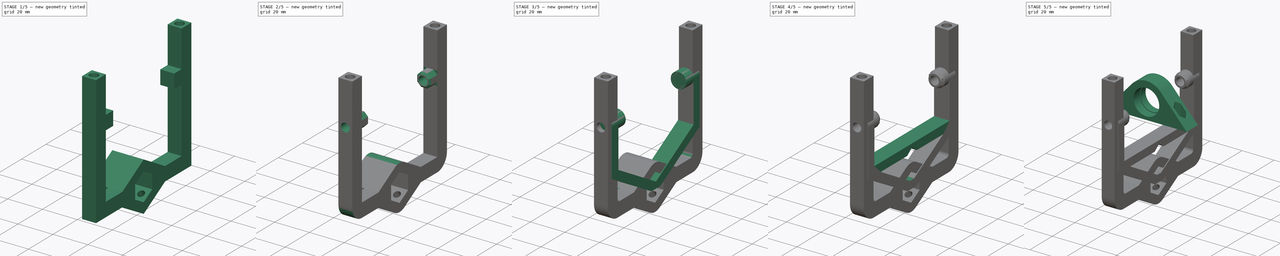
[diagram: build sequence overview — one tinted view per stage of 5, left to right]
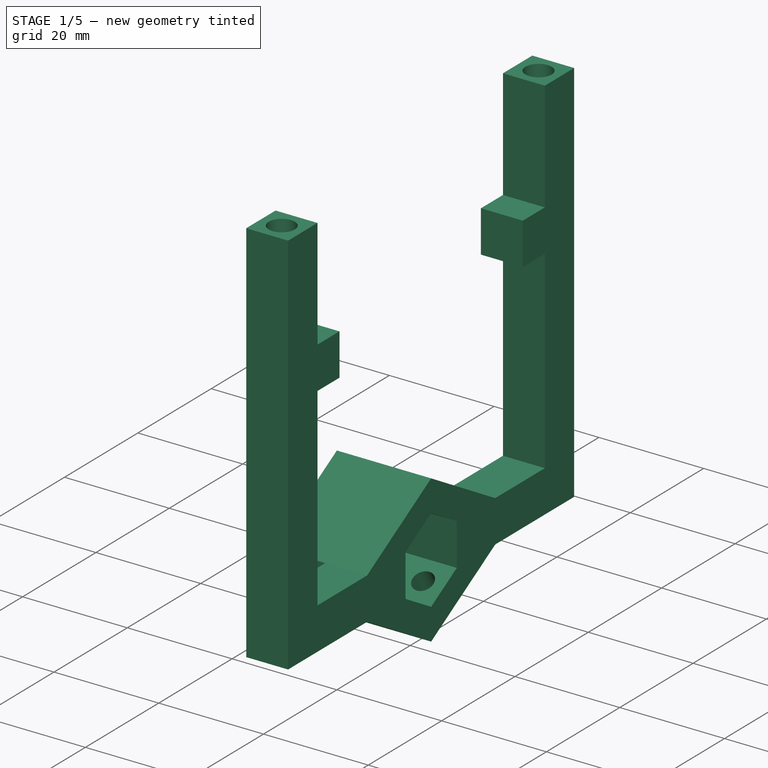
[diagram: stage 1 of 5 — iso view after this stage's code; geometry added in this stage tinted green]
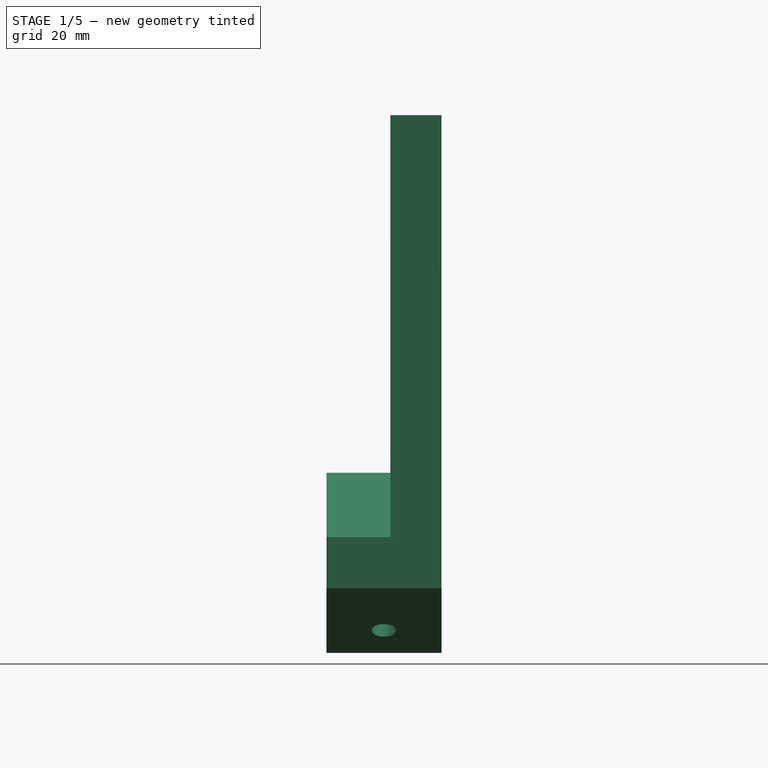
[diagram: stage 1 of 5 — front view after this stage's code; geometry added in this stage tinted green]
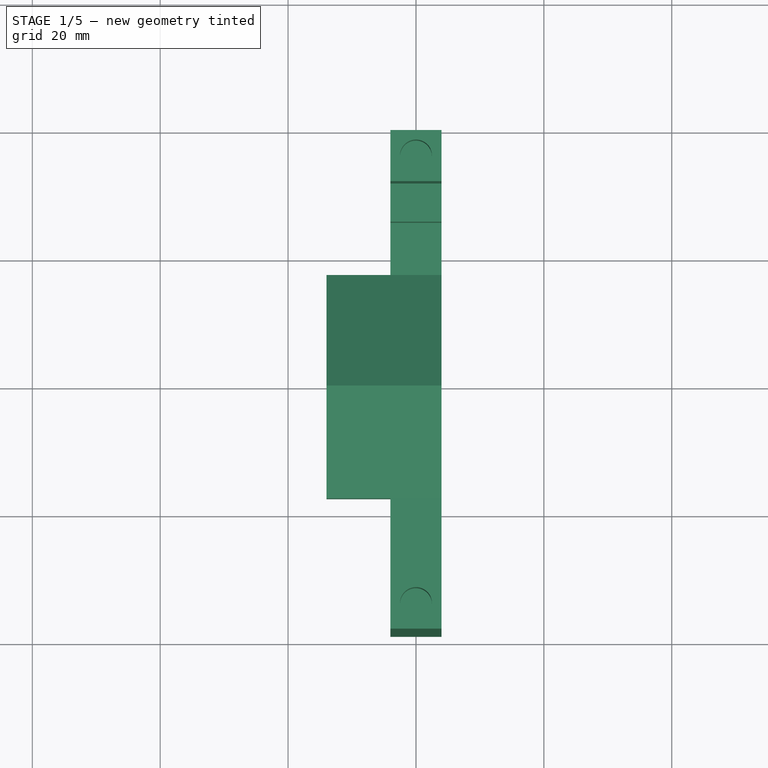
[diagram: stage 1 of 5 — top view after this stage's code; geometry added in this stage tinted green]
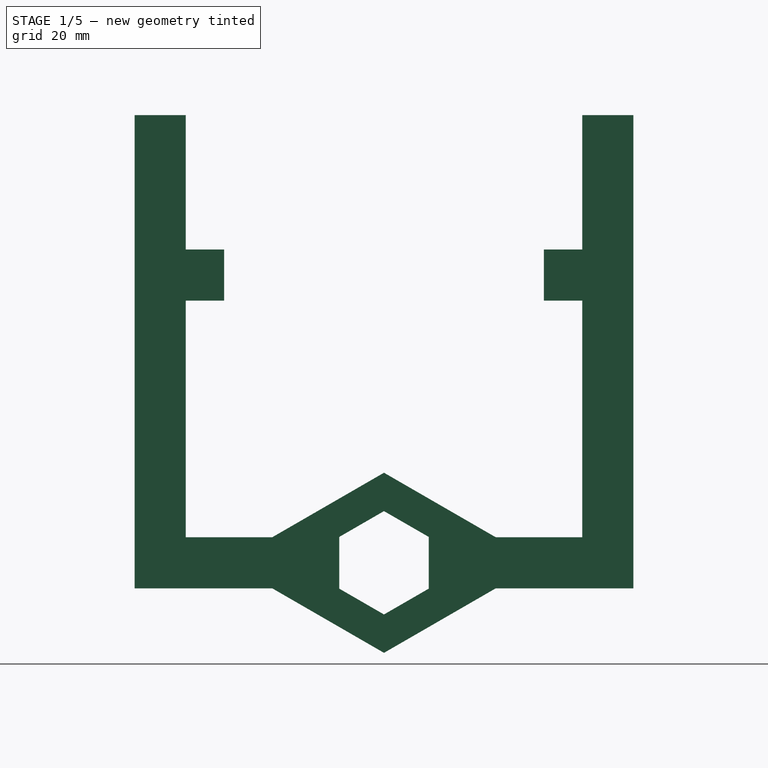
[diagram: stage 1 of 5 — right view after this stage's code; geometry added in this stage tinted green]
FCSTD DOCUMENT  (FreeCAD 0.19R23141 (Git))
Label: plotter_pen_holder_2
License: All rights reserved
LicenseURL: http://en.wikipedia.org/wiki/All_rights_reserved
objects: Sketcher::SketchObject×13, PartDesign::Pocket×6, PartDesign::Pad×5, PartDesign::Body×4, PartDesign::Fillet×4, PartDesign::Chamfer×4, PartDesign::Hole×2, PartDesign::FeatureBase×1, PartDesign::Mirrored×1
note: 61 computed .brp shape members not serialized (recipe doc carries the construction recipe); baked Part::Feature solids carry a one-line shape summary decoded from their .brp

FEATURE [PartDesign::Body] Body002
  Group = -> [Sketch004,Pad001,Mirrored,Fillet,Chamfer,Chamfer001,Sketch005,Pad002,Sketch006,Pocket001]
  Origin = -> Origin002
  Tip = -> Pocket001
FEATURE [Sketcher::SketchObject] Sketch007
  MapMode = 5
  Placement = pos=(0,0,0) rot=(0.57735,0.57735,0.57735;2.0944rad)
  Support = -> [YZ_Plane003]
  sketch-geometry (35):
    g0: LineSegment StartX=31 StartY=35 StartZ=0 EndX=39 EndY=35 EndZ=0
    g1: LineSegment StartX=39 StartY=35 StartZ=0 EndX=39 EndY=-39 EndZ=0
    g2: LineSegment StartX=39 StartY=-39 StartZ=0 EndX=17.4641 EndY=-39 EndZ=0
    g3: LineSegment StartX=17.4641 StartY=-39 StartZ=0 EndX=0 EndY=-49.0829 EndZ=0
    g4: LineSegment StartX=0 StartY=-49.0829 StartZ=0 EndX=-17.4641 EndY=-39 EndZ=0
    g5: LineSegment StartX=-17.4641 StartY=-39 StartZ=0 EndX=-39 EndY=-39 EndZ=0
    g6: LineSegment StartX=-39 StartY=-39 StartZ=0 EndX=-39 EndY=35 EndZ=0
    g7: LineSegment StartX=-39 StartY=35 StartZ=0 EndX=-31 EndY=35 EndZ=0
    g8: LineSegment [constr] StartX=-31 StartY=35 StartZ=0 EndX=-31 EndY=-31 EndZ=0
    g9: LineSegment StartX=-31 StartY=-31 StartZ=0 EndX=-17.4641 EndY=-31 EndZ=0
    g10: LineSegment StartX=-17.4641 StartY=-31 StartZ=0 EndX=0 EndY=-20.9171 EndZ=0
    g11: LineSegment StartX=0 StartY=-20.9171 StartZ=0 EndX=17.4641 EndY=-31 EndZ=0
    g12: LineSegment StartX=17.4641 StartY=-31 StartZ=0 EndX=31 EndY=-31 EndZ=0
    g13: LineSegment [constr] StartX=31 StartY=-31 StartZ=0 EndX=31 EndY=35 EndZ=0
    g14: LineSegment StartX=7 StartY=-39.0415 StartZ=0 EndX=7 EndY=-30.9585 EndZ=0
    g15: LineSegment StartX=7 StartY=-30.9585 StartZ=0 EndX=0 EndY=-26.9171 EndZ=0
    g16: LineSegment StartX=0 StartY=-26.9171 StartZ=0 EndX=-7 EndY=-30.9585 EndZ=0
    g17: LineSegment StartX=-7 StartY=-30.9585 StartZ=0 EndX=-7 EndY=-39.0415 EndZ=0
    g18: LineSegment StartX=-7 StartY=-39.0415 StartZ=0 EndX=0 EndY=-43.0829 EndZ=0
    g19: LineSegment StartX=-1e-16 StartY=-43.0829 StartZ=0 EndX=7 EndY=-39.0415 EndZ=0
    g20: Circle [constr] CenterX=0 CenterY=-35 CenterZ=0 NormalX=0 NormalY=0 NormalZ=1 AngleXU=0 Radius=8.0829
    g21: LineSegment [constr] StartX=-17.4641 StartY=-31 StartZ=0 EndX=-17.4641 EndY=-39 EndZ=0
    g22: LineSegment [constr] StartX=17.4641 StartY=-31 StartZ=0 EndX=17.4641 EndY=-39 EndZ=0
    g23: LineSegment StartX=-31 StartY=35 StartZ=0 EndX=-31 EndY=14 EndZ=0
    g24: LineSegment StartX=-31 StartY=14 StartZ=0 EndX=-25 EndY=14 EndZ=0
    g25: LineSegment StartX=-25 StartY=14 StartZ=0 EndX=-25 EndY=6 EndZ=0
    g26: LineSegment StartX=-25 StartY=6 StartZ=0 EndX=-31 EndY=6 EndZ=0
    g27: LineSegment StartX=-31 StartY=6 StartZ=0 EndX=-31 EndY=-31 EndZ=0
    g28: LineSegment StartX=31 StartY=35 StartZ=0 EndX=31 EndY=14 EndZ=0
    g29: LineSegment StartX=31 StartY=14 StartZ=0 EndX=25 EndY=14 EndZ=0
    g30: LineSegment StartX=25 StartY=14 StartZ=0 EndX=25 EndY=6 EndZ=0
    g31: LineSegment StartX=25 StartY=6 StartZ=0 EndX=31 EndY=6 EndZ=0
    g32: LineSegment StartX=31 StartY=6 StartZ=0 EndX=31 EndY=-31 EndZ=0
    g33: LineSegment [constr] StartX=-25 StartY=14 StartZ=0 EndX=0 EndY=10 EndZ=0
    g34: LineSegment [constr] StartX=0 StartY=10 StartZ=0 EndX=-25 EndY=6 EndZ=0
  constraints (96):
    c: Horizontal(g0)
    c: Coincident(g0,g1)
    c: Vertical(g1)
    c: Coincident(g1,g2)
    c: Horizontal(g2)
    c: Coincident(g2,g3)
    c: Coincident(g4,g5)
    c: Horizontal(g5)
    c: Coincident(g5,g6)
    c: Vertical(g6)
    c: Coincident(g6,g7)
    c: Horizontal(g7)
    c: Coincident(g7,g8)
    c: Vertical(g8)
    c: Coincident(g8,g9)
    c: Horizontal(g9)
    c: Coincident(g9,g10)
    c: Coincident(g11,g12)
    c: Horizontal(g12)
    c: Coincident(g12,g13)
    c: Coincident(g13,g0)
    c: Vertical(g13)
    c: Coincident(g14,g15)
    c: Coincident(g15,g16)
    c: Coincident(g16,g17)
    c: Coincident(g17,g18)
    c: Coincident(g18,g19)
    c: Coincident(g19,g14)
    c: Equal(g14, g15-g19) x5
    c: PointOnObject(g14,g20)
    c: PointOnObject(g15,g20)
    c: PointOnObject(g16,g20)
    c: PointOnObject(g17,g20)
    c: PointOnObject(g18,g20)
    c: PointOnObject(g19,g20)
    c: PointOnObject(g20,g-2)
    c: PointOnObject(g15,g-2)
    c: DistanceY(g20,g-1) = 35
    c: DistanceX(g16,g14) = 14
    c: PointOnObject(g3,g-2)
    c: Coincident(g4,g3)
    c: Coincident(g10,g11)
    c: PointOnObject(g10,g-2)
    c: Parallel(g18,g4)
    c: Parallel(g19,g3)
    c: Parallel(g16,g10)
    c: Parallel(g15,g11)
    c: DistanceY(g15,g10) = 6
    c: DistanceY(g3,g18) = 6
    c: Coincident(g9,g21)
    c: Coincident(g21,g4)
    c: Coincident(g11,g22)
    c: Coincident(g22,g2)
    c: Vertical(g21)
    c: Vertical(g22)
    c: Equal(g22,g21)
    c: DistanceY(g22,g22) = 8
    c: Equal(g0,g7)
    c: Equal(g13,g8)
    c: Equal(g9,g12)
    c: DistanceX(g7,g0) = 62
    c: Equal(g0,g22)
    c: DistanceY(g-1,g0) = 35
    c: Coincident(g7,g23)
    c: PointOnObject(g23,g8)
    c: Coincident(g23,g24)
    c: Horizontal(g24)
    c: Coincident(g24,g25)
    c: Vertical(g25)
    c: Coincident(g25,g26)
    c: PointOnObject(g26,g8)
    c: Horizontal(g26)
    c: Coincident(g26,g27)
    c: Coincident(g27,g8)
    c: Coincident(g28,g0)
    c: PointOnObject(g28,g13)
    c: Coincident(g28,g29)
    c: Coincident(g29,g30)
    c: Coincident(g30,g31)
    c: PointOnObject(g31,g13)
    c: Horizontal(g31)
    c: Coincident(g31,g32)
    c: Coincident(g32,g12)
    c: Vertical(g30)
    c: Horizontal(g29)
    c: Equal(g28,g23)
    c: Equal(g25,g30)
    c: Equal(g31,g26)
    c: Coincident(g24,g33)
    c: PointOnObject(g33,g-2)
    c: Coincident(g33,g34)
    c: Coincident(g34,g25)
    c: DistanceY(g25,g25) = 8
    c: Equal(g34,g33)
    c: DistanceY(g-1,g33) = 10
    c: DistanceX(g24,g24) = 6
FEATURE [PartDesign::Pad] Pad003
  Direction = (1,1,1)
  Length = 8
  Length2 = 100
  Midplane = true
  Placement = pos=(0,0,0) rot=(0.57735,0.57735,0.57735;2.0944rad)
  Profile = -> Sketch007
  Type = 0
FEATURE [Sketcher::SketchObject] Sketch008
  ExternalGeometry = -> [Pad003]
  MapMode = 5
  Placement = pos=(-4,1.8e-15,-1.3e-15) rot=(0.57735,0.57735,-0.57735;4.18879rad)
  Support = -> [Pad003]
  sketch-geometry (12):
    g0: LineSegment StartX=-17.4641 StartY=31 StartZ=0 EndX=-17.4641 EndY=39 EndZ=0
    g1: LineSegment StartX=-17.4641 StartY=39 StartZ=0 EndX=-1.78e-14 EndY=49.0829 EndZ=0
    g2: LineSegment StartX=-1.78e-14 StartY=49.0829 StartZ=0 EndX=17.4641 EndY=39 EndZ=0
    g3: LineSegment StartX=17.4641 StartY=39 StartZ=0 EndX=17.4641 EndY=31 EndZ=0
    g4: LineSegment StartX=17.4641 StartY=31 StartZ=0 EndX=-7.1e-15 EndY=20.9171 EndZ=0
    g5: LineSegment StartX=-7.1e-15 StartY=20.9171 StartZ=0 EndX=-17.4641 EndY=31 EndZ=0
    g6: LineSegment StartX=-7 StartY=30.9585 StartZ=0 EndX=-9.8e-15 EndY=26.9171 EndZ=0
    g7: LineSegment StartX=-9.8e-15 StartY=26.9171 StartZ=0 EndX=7 EndY=30.9585 EndZ=0
    g8: LineSegment StartX=7 StartY=30.9585 StartZ=0 EndX=7 EndY=39.0415 EndZ=0
    g9: LineSegment StartX=7 StartY=39.0415 StartZ=0 EndX=-1.42e-14 EndY=43.0829 EndZ=0
    g10: LineSegment StartX=-1.42e-14 StartY=43.0829 StartZ=0 EndX=-7 EndY=39.0415 EndZ=0
    g11: LineSegment StartX=-7 StartY=39.0415 StartZ=0 EndX=-7 EndY=30.9585 EndZ=0
  constraints (24):
    c: Coincident(g-4,g0)
    c: Coincident(g0,g-3)
    c: Coincident(g0,g1)
    c: Coincident(g1,g-6)
    c: Coincident(g1,g2)
    c: Coincident(g2,g-6)
    c: Coincident(g2,g3)
    c: Coincident(g3,g-5)
    c: Coincident(g3,g4)
    c: Coincident(g4,g-5)
    c: Coincident(g4,g5)
    c: Coincident(g5,g0)
    c: Coincident(g-10,g6)
    c: Coincident(g6,g-11)
    c: Coincident(g6,g7)
    c: Coincident(g7,g-12)
    c: Coincident(g7,g8)
    c: Coincident(g8,g-12)
    c: Coincident(g8,g9)
    c: Coincident(g9,g-8)
    c: Coincident(g9,g10)
    c: Coincident(g10,g-9)
    c: Coincident(g10,g11)
    c: Coincident(g11,g6)
FEATURE [PartDesign::Pad] Pad004
  BaseFeature = -> Pad003
  Direction = (1,1,1)
  Length = 10
  Length2 = 100
  Placement = pos=(0,0,0) rot=(0.57735,0.57735,0.57735;2.0944rad)
  Profile = -> Sketch008
  Refine = true
  Type = 0
FEATURE [Sketcher::SketchObject] Sketch009
  ExternalGeometry = -> [Pad004]
  MapMode = 5
  Placement = pos=(3.07e-14,18.6554,-32.3122) rot=(0.250563,0.250563,-0.935113;1.63783rad)
  Support = -> [Pad004]
  sketch-geometry (6):
    g0: Circle CenterX=17.5 CenterY=-3.6e-15 CenterZ=0 NormalX=0 NormalY=0 NormalZ=1 AngleXU=0 Radius=1.95
    g1: Circle CenterX=17.5 CenterY=-10 CenterZ=0 NormalX=0 NormalY=0 NormalZ=1 AngleXU=0 Radius=1.95
    g2: LineSegment [constr] StartX=13.4585 StartY=4 StartZ=0 EndX=17.5 EndY=-3.6e-15 EndZ=0
    g3: LineSegment [constr] StartX=17.5 StartY=-3.6e-15 StartZ=0 EndX=21.5415 EndY=4 EndZ=0
    g4: LineSegment [constr] StartX=13.4585 StartY=-14 StartZ=0 EndX=17.5 EndY=-10 EndZ=0
    g5: LineSegment [constr] StartX=17.5 StartY=-10 StartZ=0 EndX=17.5 EndY=-3.6e-15 EndZ=0
  constraints (14):
    c: Coincident(g-3,g2)
    c: Coincident(g2,g0)
    c: Coincident(g2,g3)
    c: Coincident(g3,g-3)
    c: Coincident(g-4,g4)
    c: Coincident(g4,g1)
    c: Coincident(g4,g5)
    c: Coincident(g5,g0)
    c: Vertical(g5)
    c: Equal(g2,g3)
    c: Equal(g3,g4)
    c: DistanceY(g5,g5) = 10
    c: Diameter(g0) = 3.9
    c: Equal(g0,g1)
FEATURE [PartDesign::Pocket] Pocket002
  BaseFeature = -> Pad004
  Length = 10
  Length2 = 100
  Placement = pos=(0,0,0) rot=(0.57735,0.57735,0.57735;2.0944rad)
  Profile = -> Sketch009
  Type = 0
FEATURE [Sketcher::SketchObject] Sketch010
  ExternalGeometry = -> [Pocket002]
  MapMode = 5
  Placement = pos=(9.7e-15,-18.6554,-32.3122) rot=(-0.250563,-0.250563,-0.935113;1.63783rad)
  Support = -> [Pocket002]
  sketch-geometry (4):
    g0: LineSegment [constr] StartX=-21.5415 StartY=4 StartZ=0 EndX=-17.5 EndY=-5 EndZ=0
    g1: LineSegment [constr] StartX=-17.5 StartY=-5 StartZ=0 EndX=-13.4585 EndY=4 EndZ=0
    g2: LineSegment [constr] StartX=-17.5 StartY=-5 StartZ=0 EndX=-13.4585 EndY=-14 EndZ=0
    g3: Circle CenterX=-17.5 CenterY=-5 CenterZ=0 NormalX=0 NormalY=0 NormalZ=1 AngleXU=0 Radius=1.95
  constraints (9):
    c: Coincident(g-4,g0)
    c: Coincident(g0,g1)
    c: Coincident(g1,g-4)
    c: Coincident(g0,g2)
    c: Coincident(g2,g-3)
    c: Equal(g2,g1)
    c: Equal(g1,g0)
    c: Coincident(g3,g0)
    c: Diameter(g3) = 3.9
FEATURE [PartDesign::Pocket] Pocket003
  BaseFeature = -> Pocket002
  Length = 10
  Length2 = 100
  Placement = pos=(0,0,0) rot=(0.57735,0.57735,0.57735;2.0944rad)
  Profile = -> Sketch010
  Type = 0
FEATURE [Sketcher::SketchObject] Sketch011
  ExternalGeometry = -> [Pocket003]
  MapMode = 5
  Placement = pos=(-4.86e-14,3.11e-14,35) rot=(0,0,-1;1.5708rad)
  Support = -> [Pocket003]
  sketch-geometry (8):
    g0: Circle CenterX=-35 CenterY=-1.24e-14 CenterZ=0 NormalX=0 NormalY=0 NormalZ=1 AngleXU=0 Radius=2.5
    g1: Circle CenterX=35 CenterY=2.416e-13 CenterZ=0 NormalX=0 NormalY=0 NormalZ=1 AngleXU=0 Radius=2.5
    g2: LineSegment [constr] StartX=39 StartY=4 StartZ=0 EndX=35 EndY=2.416e-13 EndZ=0
    g3: LineSegment [constr] StartX=35 StartY=2.416e-13 StartZ=0 EndX=31 EndY=4 EndZ=0
    g4: LineSegment [constr] StartX=31 StartY=-4 StartZ=0 EndX=35 EndY=2.416e-13 EndZ=0
    g5: LineSegment [constr] StartX=-35 StartY=-1.24e-14 StartZ=0 EndX=-39 EndY=-4 EndZ=0
    g6: LineSegment [constr] StartX=-39 StartY=4 StartZ=0 EndX=-35 EndY=-1.24e-14 EndZ=0
    g7: LineSegment [constr] StartX=-35 StartY=-1.24e-14 StartZ=0 EndX=-31 EndY=4 EndZ=0
  constraints (18):
    c: Diameter(g1) = 5
    c: Equal(g1,g0)
    c: Coincident(g2,g1)
    c: Coincident(g2,g3)
    c: Coincident(g4,g1)
    c: Coincident(g5,g0)
    c: Coincident(g5,g-4)
    c: Coincident(g-3,g6)
    c: Coincident(g6,g0)
    c: Coincident(g6,g7)
    c: Coincident(g7,g-3)
    c: Equal(g7,g6)
    c: Equal(g6,g5)
    c: Equal(g2,g3)
    c: Equal(g3,g4)
    c: Coincident(g2,g-5)
    c: Coincident(g4,g-6)
    c: Coincident(g-5,g3)
FEATURE [PartDesign::Pocket] Pocket004
  BaseFeature = -> Pocket003
  Length = 10
  Length2 = 100
  Placement = pos=(0,0,0) rot=(0.57735,0.57735,0.57735;2.0944rad)
  Profile = -> Sketch011
  Type = 0
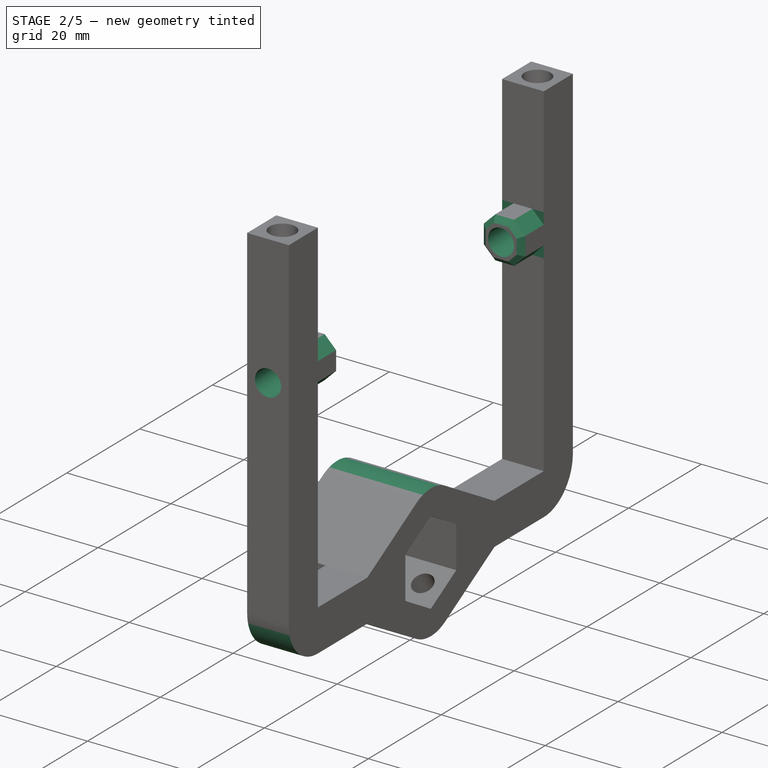
[diagram: stage 2 of 5 — iso view after this stage's code; geometry added in this stage tinted green]
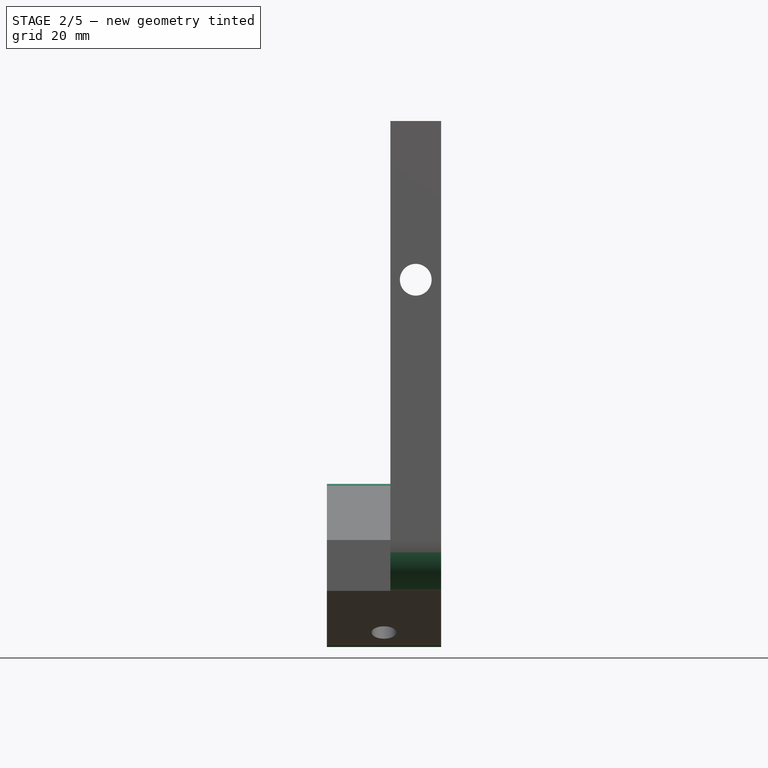
[diagram: stage 2 of 5 — front view after this stage's code; geometry added in this stage tinted green]
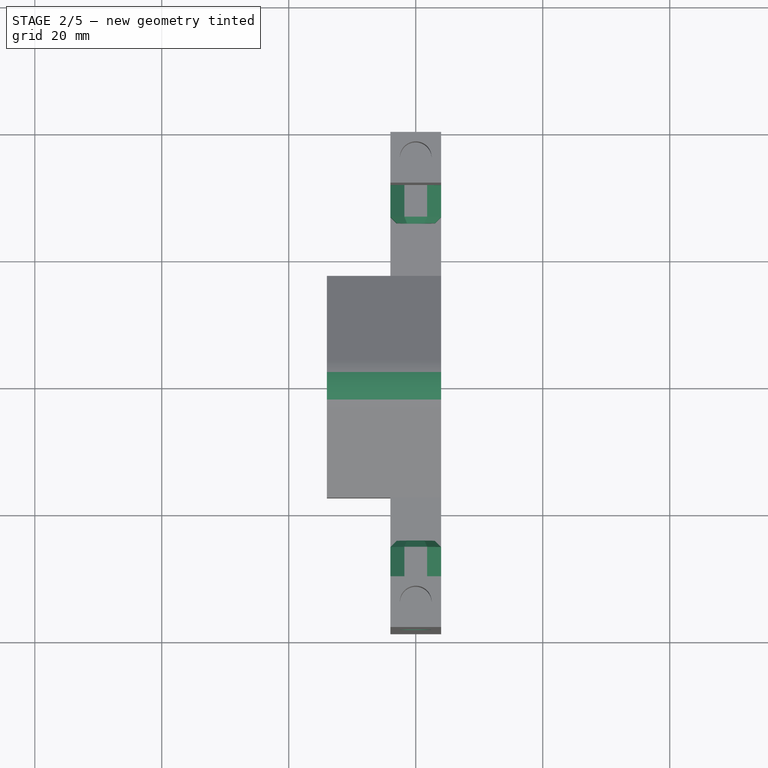
[diagram: stage 2 of 5 — top view after this stage's code; geometry added in this stage tinted green]
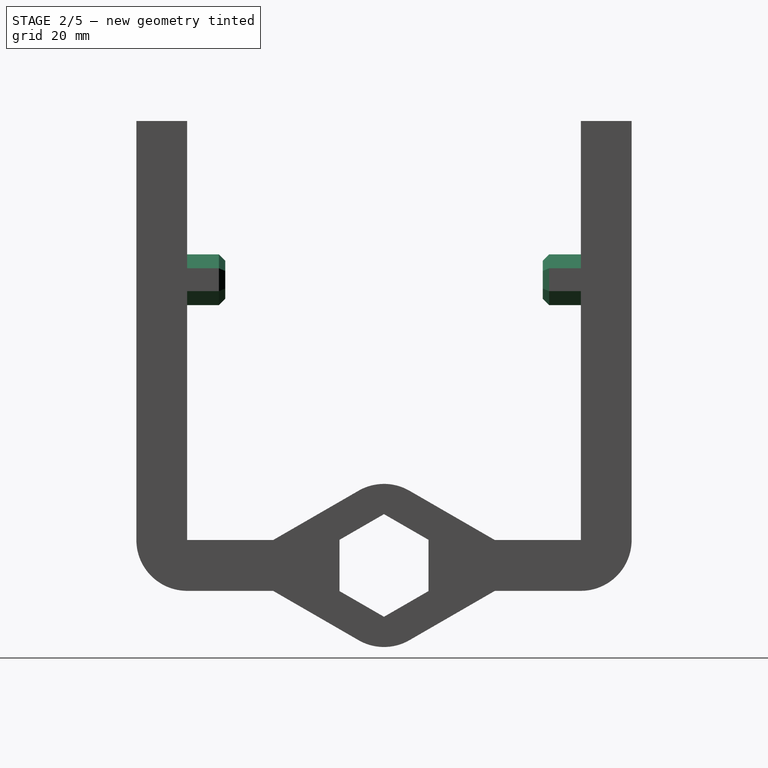
[diagram: stage 2 of 5 — right view after this stage's code; geometry added in this stage tinted green]
FEATURE [Sketcher::SketchObject] Sketch012
  MapMode = 5
  Placement = pos=(0,0,0) rot=(1,0,0;1.5708rad)
  Support = -> [XZ_Plane003]
  sketch-geometry (1):
    g0: Circle CenterX=0 CenterY=10 CenterZ=0 NormalX=0 NormalY=0 NormalZ=1 AngleXU=0 Radius=2.5
  constraints (3):
    c: PointOnObject(g0,g-2)
    c: Diameter(g0) = 5
    c: DistanceY(g-1,g0) = 10
FEATURE [PartDesign::Pocket] Pocket005
  BaseFeature = -> Pocket004
  Length = 5
  Length2 = 100
  Midplane = true
  Placement = pos=(0,0,0) rot=(0.57735,0.57735,0.57735;2.0944rad)
  Profile = -> Sketch012
  Type = 1
FEATURE [PartDesign::Chamfer] Chamfer002
  Angle = 45
  Base = -> Pocket005 [Edge76,Edge81,Edge27,Edge25,Edge11,Edge9,Edge36,Edge34]
  BaseFeature = -> Pocket005
  ChamferType = 0
  FlipDirection = false
  Placement = pos=(0,0,0) rot=(0.57735,0.57735,0.57735;2.0944rad)
  Size = 2.2
  Size2 = 1
  SupportTransform = false
FEATURE [PartDesign::Chamfer] Chamfer003
  Angle = 45
  Base = -> Chamfer002 [Edge75,Edge73,Edge72,Edge74,Edge25,Edge77,Edge78,Edge76,Edge47,Edge57,Edge58,Edge56,Edge16,Edge13,Edge11,Edge15]
  BaseFeature = -> Chamfer002
  ChamferType = 0
  FlipDirection = false
  Placement = pos=(0,0,0) rot=(0.57735,0.57735,0.57735;2.0944rad)
  Size = 1
  Size2 = 1
  SupportTransform = false
FEATURE [PartDesign::Fillet] Fillet001
  Base = -> Chamfer003 [Edge118,Edge121,Edge111,Edge76]
  BaseFeature = -> Chamfer003
  Placement = pos=(0,0,0) rot=(0.57735,0.57735,0.57735;2.0944rad)
  Radius = 8
  SupportTransform = false
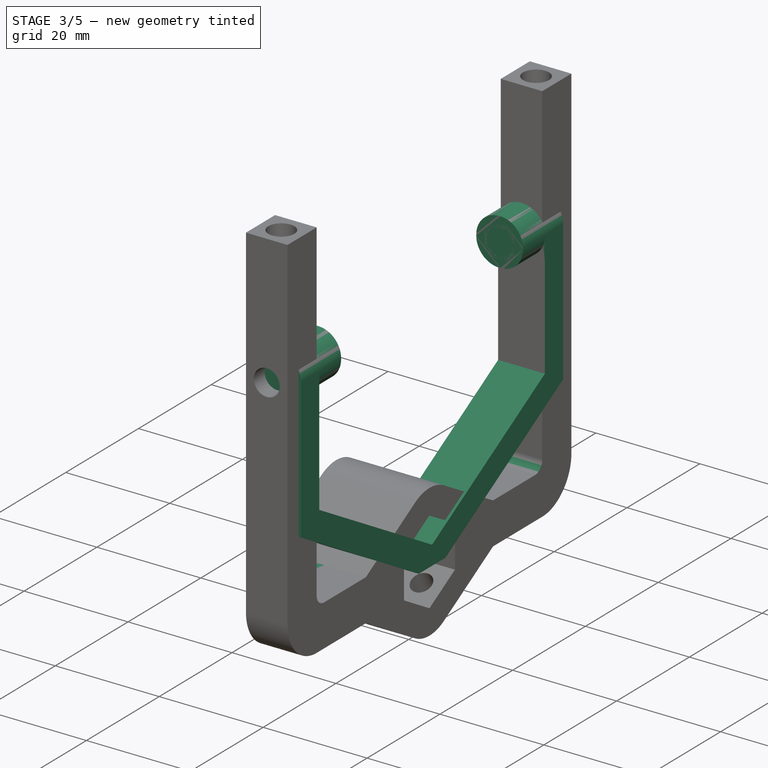
[diagram: stage 3 of 5 — iso view after this stage's code; geometry added in this stage tinted green]
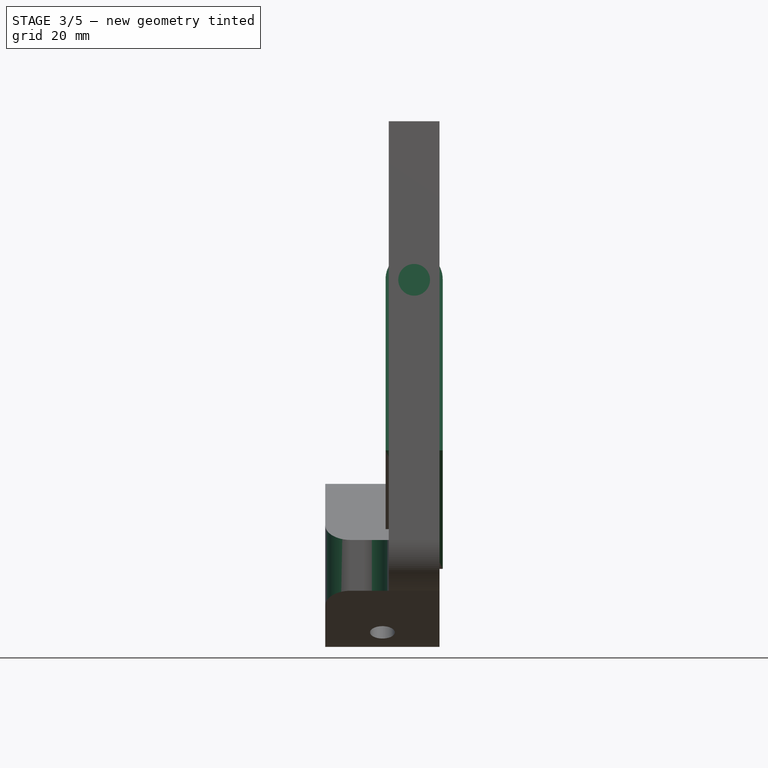
[diagram: stage 3 of 5 — front view after this stage's code; geometry added in this stage tinted green]
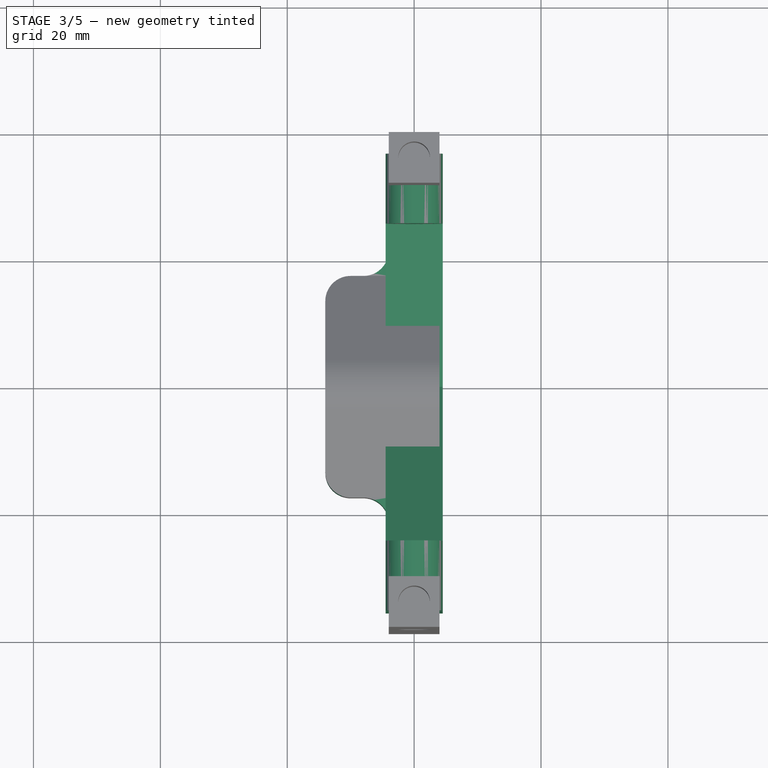
[diagram: stage 3 of 5 — top view after this stage's code; geometry added in this stage tinted green]
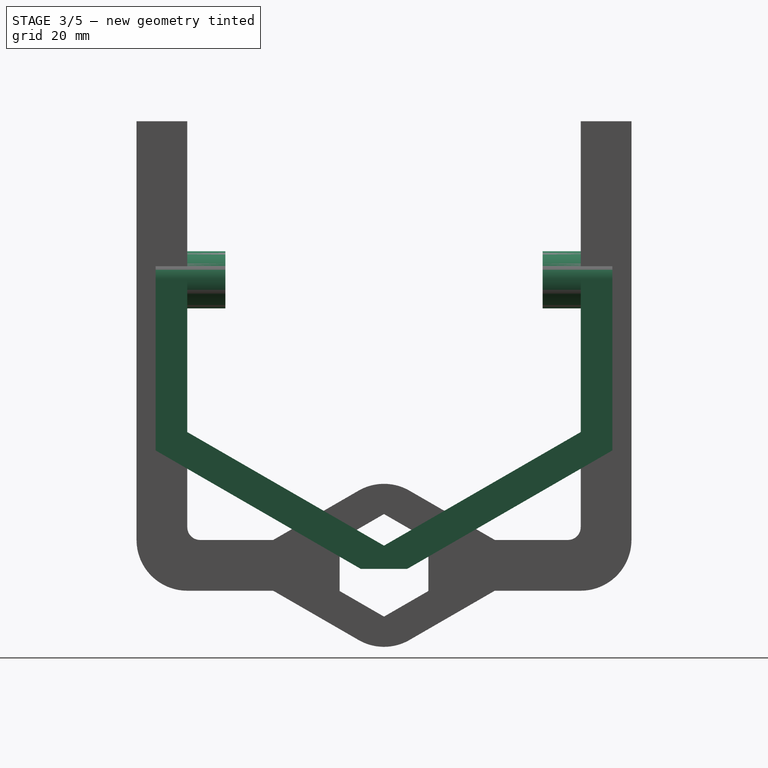
[diagram: stage 3 of 5 — right view after this stage's code; geometry added in this stage tinted green]
FEATURE [PartDesign::Body] Body001
  BaseFeature = -> Body
  Group = -> [Clone]
  Origin = -> Origin001
  Placement = pos=(0,-25,0) rot=(0,0,1;3.14159rad)
  Tip = -> Clone
FEATURE [Sketcher::SketchObject] Sketch004
  MapMode = 5
  Placement = pos=(0,0,0) rot=(0.57735,0.57735,0.57735;2.0944rad)
  Support = -> [YZ_Plane002]
  sketch-geometry (12):
    g0: LineSegment StartX=-31 StartY=5.5 StartZ=0 EndX=-31 EndY=-14 EndZ=0
    g1: LineSegment StartX=-31 StartY=5.5 StartZ=0 EndX=-25 EndY=5.5 EndZ=0
    g2: LineSegment StartX=-25 StartY=5.5 StartZ=0 EndX=-25 EndY=14.5 EndZ=0
    g3: LineSegment StartX=-25 StartY=14.5 StartZ=0 EndX=-36 EndY=14.5 EndZ=0
    g4: LineSegment StartX=-36 StartY=14.5 StartZ=0 EndX=-36 EndY=-16.8868 EndZ=0
    g5: LineSegment [constr] StartX=-25 StartY=14.5 StartZ=0 EndX=0 EndY=10 EndZ=0
    g6: LineSegment [constr] StartX=0 StartY=10 StartZ=0 EndX=-25 EndY=5.5 EndZ=0
    g7: LineSegment StartX=-31 StartY=-14 StartZ=0 EndX=0 EndY=-31.8979 EndZ=0
    g8: LineSegment StartX=0 StartY=-31.8979 StartZ=0 EndX=0 EndY=-35.5581 EndZ=0
    g9: LineSegment StartX=0 StartY=-35.5581 StartZ=0 EndX=-3.66025 EndY=-35.5581 EndZ=0
    g10: LineSegment StartX=-3.66025 StartY=-35.5581 StartZ=0 EndX=-36 EndY=-16.8868 EndZ=0
    g11: LineSegment [constr] StartX=-36 StartY=-16.8868 StartZ=0 EndX=-33.5 EndY=-12.5566 EndZ=0
  constraints (35):
    c: Vertical(g0)
    c: Coincident(g0,g1)
    c: Horizontal(g1)
    c: Coincident(g1,g2)
    c: Coincident(g2,g3)
    c: Horizontal(g3)
    c: Coincident(g3,g4)
    c: Vertical(g4)
    c: DistanceY(g0,g-1) = 14
    c: DistanceX(g0,g-1) = 31
    c: Vertical(g2)
    c: Coincident(g2,g5)
    c: PointOnObject(g5,g-2)
    c: Coincident(g5,g6)
    c: Coincident(g6,g1)
    c: Equal(g6,g5)
    c: DistanceY(g-1,g5) = 10
    c: DistanceY(g2,g2) = 9
    c: DistanceX(g1,g-1) = 25
    c: DistanceX(g3,g0) = 5
    c: Coincident(g0,g7)
    c: PointOnObject(g7,g-2)
    c: Coincident(g7,g8)
    c: PointOnObject(g8,g-2)
    c: Horizontal(g9)
    c: Coincident(g9,g10)
    c: Coincident(g10,g4)
    c: Coincident(g9,g8)
    c: Coincident(g11,g4)
    c: PointOnObject(g11,g7)
    c: Perpendicular(g7,g11)
    c: Distance(g11) = 5
    c: Parallel(g10,g7)
    c: Equal(g9,g8)
    c: Angle(g-2,g7) = 1.0472
FEATURE [PartDesign::Pad] Pad001
  Direction = (1,1,1)
  Length = 9
  Length2 = 100
  Midplane = true
  Placement = pos=(0,0,0) rot=(0.57735,0.57735,0.57735;2.0944rad)
  Profile = -> Sketch004
  Type = 0
FEATURE [PartDesign::Mirrored] Mirrored
  BaseFeature = -> Pad001
  MirrorPlane = -> Sketch004 [V_Axis]
  Originals = -> [Pad001]
  Placement = pos=(0,0,0) rot=(0.57735,0.57735,0.57735;2.0944rad)
  Refine = true
FEATURE [PartDesign::Fillet] Fillet
  Base = -> Mirrored [Edge30,Edge40,Edge31,Edge6,Edge18,Edge19,Edge41,Edge7]
  BaseFeature = -> Mirrored
  Placement = pos=(0,0,0) rot=(0.57735,0.57735,0.57735;2.0944rad)
  Radius = 4.4
  SupportTransform = false
FEATURE [PartDesign::Fillet] Fillet002
  Base = -> Fillet001 [Edge34,Edge142]
  BaseFeature = -> Fillet001
  Placement = pos=(0,0,0) rot=(0.57735,0.57735,0.57735;2.0944rad)
  Radius = 2
  SupportTransform = false
FEATURE [PartDesign::Fillet] Fillet003
  Base = -> Fillet002 [Edge3,Edge22,Edge87,Edge166]
  BaseFeature = -> Fillet002
  Placement = pos=(0,0,0) rot=(0.57735,0.57735,0.57735;2.0944rad)
  Radius = 4
  SupportTransform = false
FEATURE [PartDesign::Body] Body003
  Group = -> [Sketch007,Pad003,Sketch008,Pad004,Sketch009,Pocket002,Sketch010,Pocket003,Sketch011,Pocket004,Sketch012,Pocket005,Chamfer002,Chamfer003,Fillet001,Fillet002,Fillet003]
  Origin = -> Origin003
  Tip = -> Fillet003
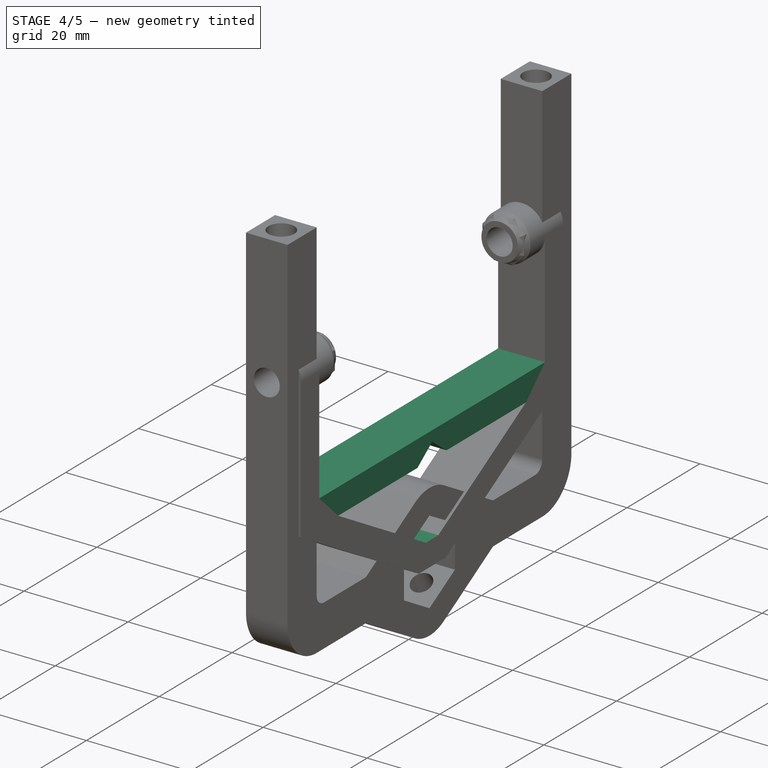
[diagram: stage 4 of 5 — iso view after this stage's code; geometry added in this stage tinted green]
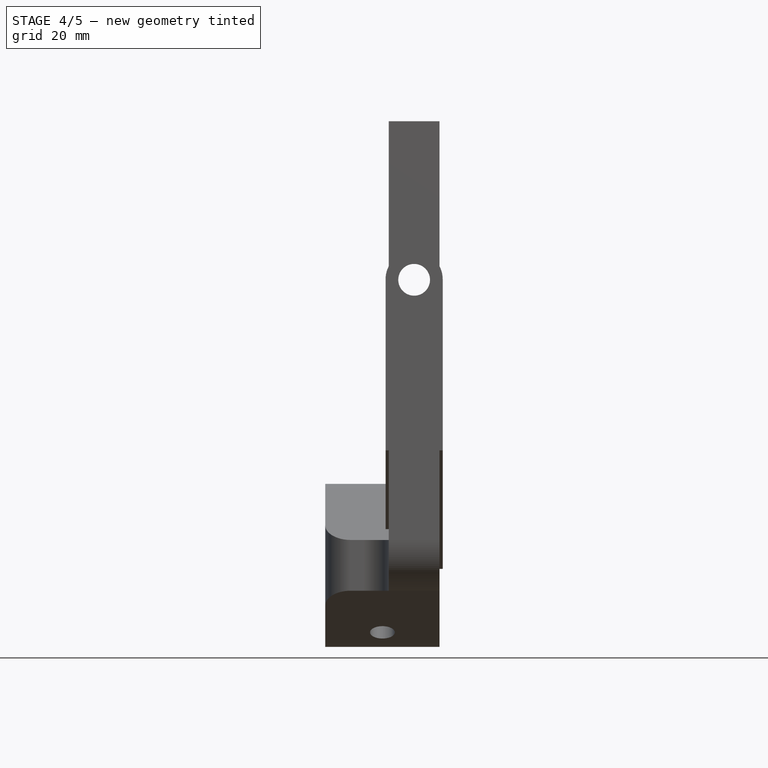
[diagram: stage 4 of 5 — front view after this stage's code; geometry added in this stage tinted green]
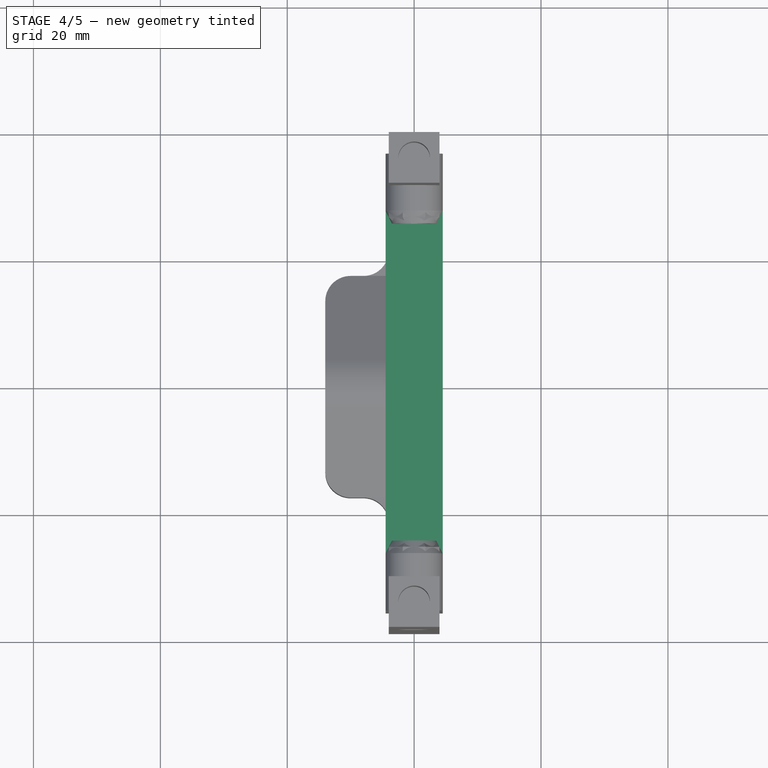
[diagram: stage 4 of 5 — top view after this stage's code; geometry added in this stage tinted green]
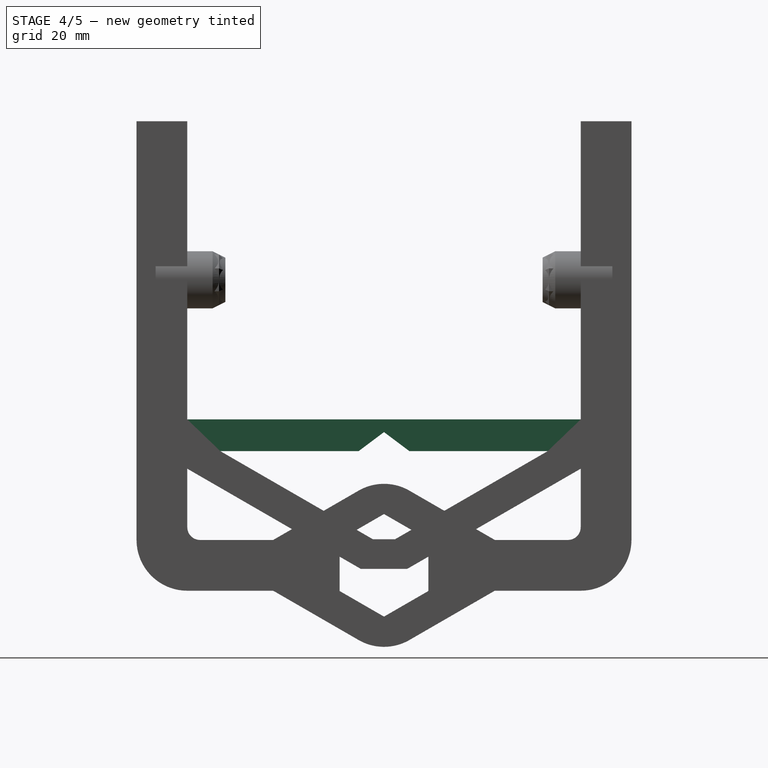
[diagram: stage 4 of 5 — right view after this stage's code; geometry added in this stage tinted green]
FEATURE [PartDesign::Chamfer] Chamfer
  Angle = 45
  Base = -> Fillet [Edge51,Edge45]
  BaseFeature = -> Fillet
  ChamferType = 1
  FlipDirection = false
  Placement = pos=(0,0,0) rot=(0.57735,0.57735,0.57735;2.0944rad)
  Size = 1
  Size2 = 2
  SupportTransform = false
FEATURE [PartDesign::Chamfer] Chamfer001
  Angle = 45
  Base = -> Chamfer [Edge56]
  BaseFeature = -> Chamfer
  ChamferType = 0
  FlipDirection = false
  Placement = pos=(0,0,0) rot=(0.57735,0.57735,0.57735;2.0944rad)
  Size = 2
  Size2 = 1
  SupportTransform = false
FEATURE [Sketcher::SketchObject] Sketch005
  MapMode = 5
  Placement = pos=(0,0,0) rot=(0.57735,0.57735,0.57735;2.0944rad)
  Support = -> [YZ_Plane002]
  sketch-geometry (9):
    g0: LineSegment StartX=-34 StartY=-12 StartZ=0 EndX=34 EndY=-12 EndZ=0
    g1: LineSegment StartX=34 StartY=-12 StartZ=0 EndX=34 EndY=-17 EndZ=0
    g2: LineSegment StartX=-34 StartY=-17 StartZ=0 EndX=-34 EndY=-12 EndZ=0
    g3: LineSegment [constr] StartX=-34 StartY=-12 StartZ=0 EndX=0 EndY=0 EndZ=0
    g4: LineSegment [constr] StartX=0 StartY=0 StartZ=0 EndX=34 EndY=-12 EndZ=0
    g5: LineSegment StartX=-34 StartY=-17 StartZ=0 EndX=-4 EndY=-17 EndZ=0
    g6: LineSegment StartX=-4 StartY=-17 StartZ=0 EndX=0 EndY=-14 EndZ=0
    g7: LineSegment StartX=0 StartY=-14 StartZ=0 EndX=4 EndY=-17 EndZ=0
    g8: LineSegment StartX=4 StartY=-17 StartZ=0 EndX=34 EndY=-17 EndZ=0
  constraints (25):
    c: Coincident(g0,g1)
    c: Coincident(g2,g0)
    c: Horizontal(g0)
    c: Vertical(g1)
    c: Vertical(g2)
    c: DistanceY(g0,g-1) = 12
    c: DistanceY(g1,g1) = 5
    c: Coincident(g0,g3)
    c: Coincident(g3,g-1)
    c: Coincident(g3,g4)
    c: Coincident(g4,g0)
    c: Equal(g4,g3)
    c: DistanceX(g0,g0) = 68
    c: Coincident(g2,g5)
    c: Horizontal(g5)
    c: Coincident(g5,g6)
    c: PointOnObject(g6,g-2)
    c: Coincident(g6,g7)
    c: Coincident(g7,g8)
    c: Coincident(g8,g1)
    c: Horizontal(g8)
    c: Equal(g8,g5)
    c: Equal(g6,g7)
    c: DistanceX(g5,g7) = 8
    c: DistanceY(g7,g6) = 3
FEATURE [PartDesign::Pad] Pad002
  BaseFeature = -> Chamfer001
  Direction = (1,1,1)
  Length = 9
  Length2 = 100
  Midplane = true
  Placement = pos=(0,0,0) rot=(0.57735,0.57735,0.57735;2.0944rad)
  Profile = -> Sketch005
  Refine = true
  Type = 0
FEATURE [Sketcher::SketchObject] Sketch006
  MapMode = 5
  Placement = pos=(0,0,0) rot=(1,0,0;1.5708rad)
  Support = -> [XZ_Plane002]
  sketch-geometry (1):
    g0: Circle CenterX=0 CenterY=10 CenterZ=0 NormalX=0 NormalY=0 NormalZ=1 AngleXU=0 Radius=2.5
  constraints (3):
    c: PointOnObject(g0,g-2)
    c: Diameter(g0) = 5
    c: DistanceY(g-1,g0) = 10
FEATURE [PartDesign::Pocket] Pocket001
  BaseFeature = -> Pad002
  Length = 5
  Length2 = 100
  Midplane = true
  Placement = pos=(0,0,0) rot=(0.57735,0.57735,0.57735;2.0944rad)
  Profile = -> Sketch006
  Type = 1
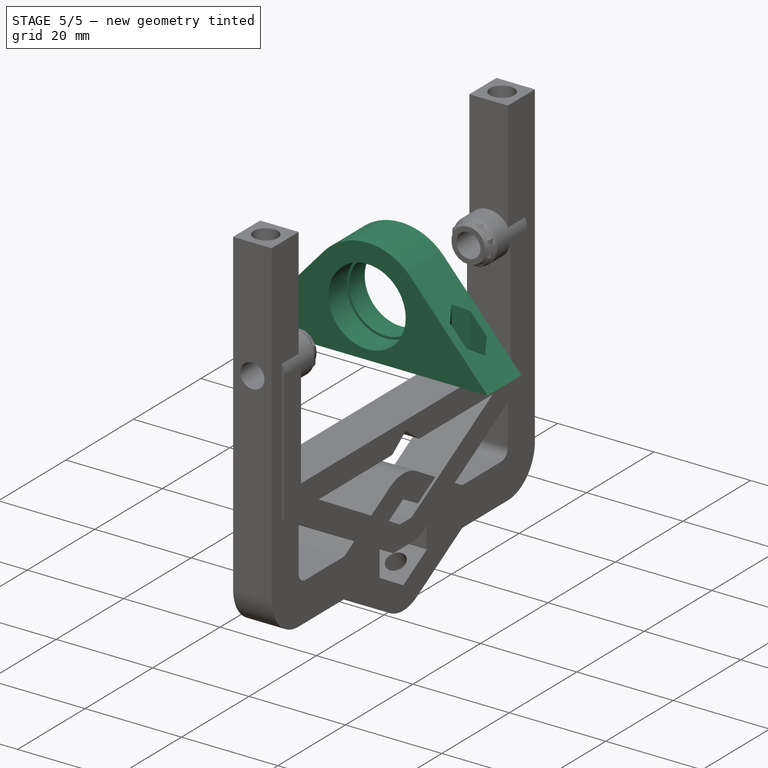
[diagram: stage 5 of 5 — iso view after this stage's code; geometry added in this stage tinted green]
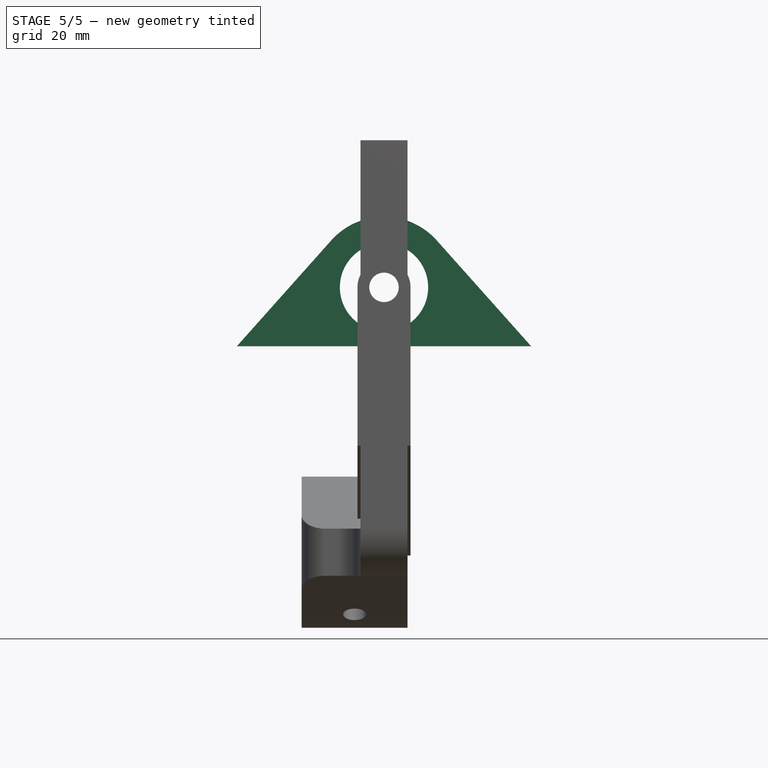
[diagram: stage 5 of 5 — front view after this stage's code; geometry added in this stage tinted green]
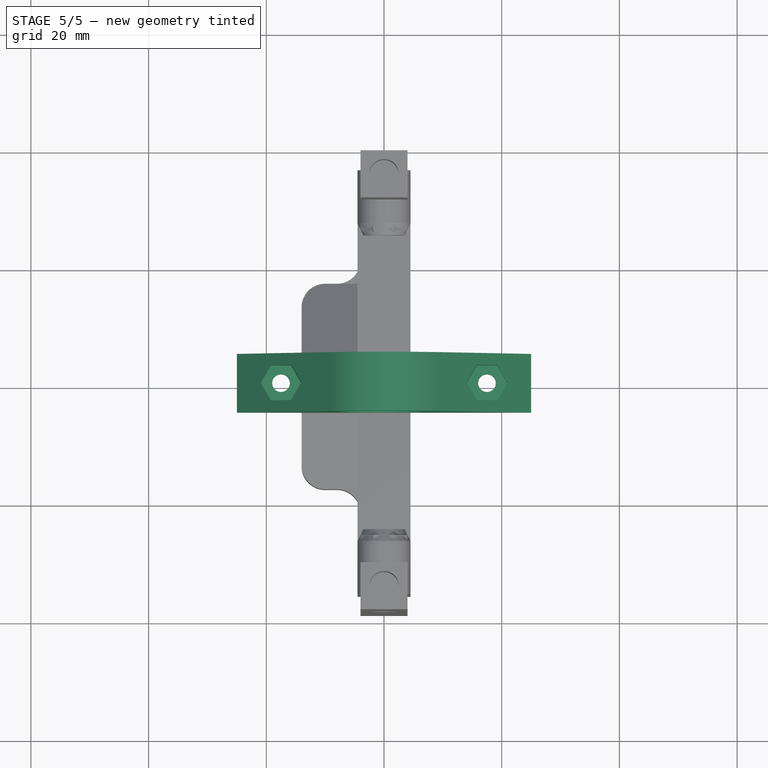
[diagram: stage 5 of 5 — top view after this stage's code; geometry added in this stage tinted green]
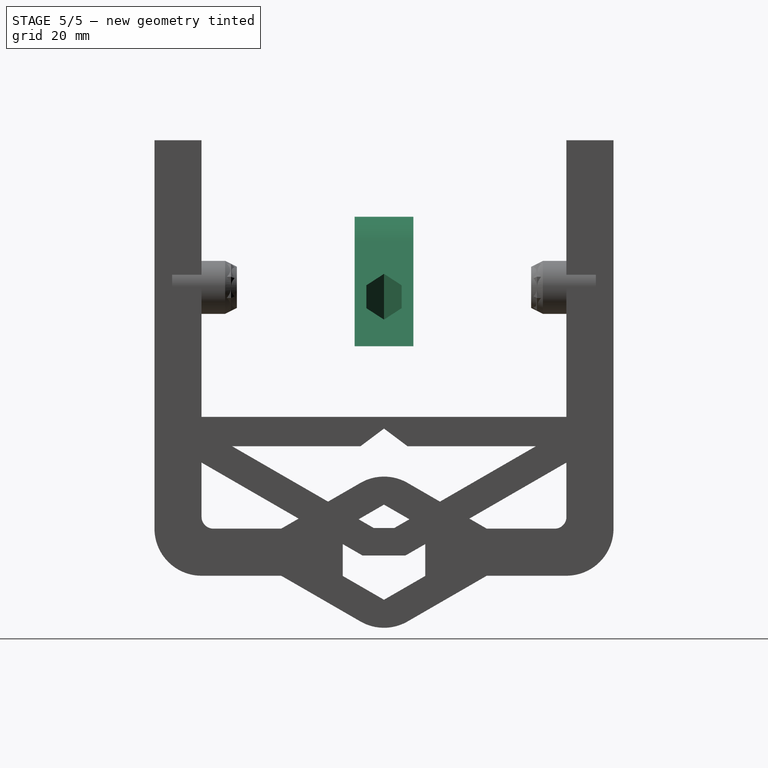
[diagram: stage 5 of 5 — right view after this stage's code; geometry added in this stage tinted green]
FEATURE [Sketcher::SketchObject] Sketch
  MapMode = 5
  Placement = pos=(0,0,0) rot=(1,0,0;1.5708rad)
  Support = -> [XZ_Plane]
  sketch-geometry (5):
    g0: LineSegment StartX=-25 StartY=0 StartZ=0 EndX=25 EndY=0 EndZ=0
    g1: ArcOfCircle CenterX=0 CenterY=10 CenterZ=0 NormalX=0 NormalY=0 NormalZ=1 AngleXU=0 Radius=12 StartAngle=0.728369 EndAngle=2.41322
    g2: LineSegment StartX=-8.95514 StartY=17.9878 StartZ=0 EndX=-25 EndY=0 EndZ=0
    g3: LineSegment StartX=8.95514 StartY=17.9878 StartZ=0 EndX=25 EndY=0 EndZ=0
    g4: LineSegment [constr] StartX=-8.95514 StartY=17.9878 StartZ=0 EndX=8.95514 EndY=17.9878 EndZ=0
  constraints (11):
    c: PointOnObject(g0,g-1)
    c: PointOnObject(g0,g-1)
    c: Tangent(g1,g2) = -1.5708
    c: Tangent(g1,g3) = 1.5708
    c: Coincident(g3,g0)
    c: Coincident(g2,g0)
    c: Coincident(g4,g1)
    c: Coincident(g4,g1)
    c: Horizontal(g4)
    c: DistanceX(g0,g0) = 50
    c: Diameter(g1) = 24
FEATURE [PartDesign::Pad] Pad
  Direction = (1,1,1)
  Length = 10
  Length2 = 100
  Midplane = true
  Placement = pos=(0,0,0) rot=(1,0,0;1.5708rad)
  Profile = -> Sketch
  Type = 0
FEATURE [Sketcher::SketchObject] Sketch001
  MapMode = 5
  Placement = pos=(0,-5,1.1e-15) rot=(1,0,0;1.5708rad)
  Support = -> [Pad]
  sketch-geometry (1):
    g0: Circle CenterX=0 CenterY=10 CenterZ=0 NormalX=0 NormalY=0 NormalZ=1 AngleXU=0 Radius=8
  constraints (3):
    c: PointOnObject(g0,g-2)
    c: DistanceY(g-1,g0) = 10
    c: Diameter(g0) = 16
FEATURE [PartDesign::Hole] Hole
  BaseFeature = -> Pad
  Depth = 25
  DepthType = 1
  Diameter = 15
  DrillPoint = 0
  DrillPointAngle = 118
  HoleCutCountersinkAngle = 90
  HoleCutDepth = 5.4
  HoleCutDiameter = 16
  HoleCutType = 1
  ModelActualThread = false
  Placement = pos=(0,0,0) rot=(1,0,0;1.5708rad)
  Profile = -> Sketch001
  Tapered = false
  TaperedAngle = 90
  ThreadAngle = 0
  ThreadClass = 0
  ThreadCutOffInner = 0
  ThreadCutOffOuter = 0
  ThreadDirection = 0
  ThreadFit = 0
  ThreadPitch = 0
  ThreadSize = 0
  ThreadType = 0
  Threaded = false
FEATURE [Sketcher::SketchObject] Sketch002
  MapMode = 5
  Placement = pos=(0,0,0) rot=(1,0,0;3.14159rad)
  Support = -> [Hole]
  sketch-geometry (4):
    g0: Circle CenterX=-17.5 CenterY=0 CenterZ=0 NormalX=0 NormalY=0 NormalZ=1 AngleXU=0 Radius=2.51289
    g1: Circle CenterX=17.5 CenterY=0 CenterZ=0 NormalX=0 NormalY=0 NormalZ=1 AngleXU=0 Radius=2.51289
    g2: LineSegment [constr] StartX=-17.5 StartY=0 StartZ=0 EndX=0 EndY=0 EndZ=0
    g3: LineSegment [constr] StartX=0 StartY=0 StartZ=0 EndX=17.5 EndY=0 EndZ=0
  constraints (9):
    c: PointOnObject(g0,g-1)
    c: PointOnObject(g1,g-1)
    c: Equal(g1,g0)
    c: Coincident(g2,g0)
    c: Coincident(g2,g3)
    c: Coincident(g3,g1)
    c: Coincident(g2,g-1)
    c: Equal(g2,g3)
    c: DistanceX(g0,g1) = 35
FEATURE [PartDesign::Hole] Hole001
  BaseFeature = -> Hole
  Depth = 25
  DepthType = 0
  Diameter = 3
  DrillPoint = 1
  DrillPointAngle = 118
  HoleCutCountersinkAngle = 90
  HoleCutDepth = 0
  HoleCutDiameter = 0
  HoleCutType = 0
  ModelActualThread = false
  Placement = pos=(0,0,0) rot=(1,0,0;1.5708rad)
  Profile = -> Sketch002
  Tapered = false
  TaperedAngle = 90
  ThreadAngle = 0
  ThreadClass = 0
  ThreadCutOffInner = 0
  ThreadCutOffOuter = 0
  ThreadDirection = 0
  ThreadFit = 0
  ThreadPitch = 0
  ThreadSize = 0
  ThreadType = 0
  Threaded = false
FEATURE [Sketcher::SketchObject] Sketch003
  AttachmentOffset = pos=(0,0,20) rot=(0,0,1;0rad)
  ExternalGeometry = -> [Hole001]
  MapMode = 5
  Placement = pos=(0,0,20) rot=(0,0,1;0rad)
  Support = -> [XY_Plane]
  sketch-geometry (14):
    g0: LineSegment StartX=-15.7679 StartY=3 StartZ=0 EndX=-19.2321 EndY=3 EndZ=0
    g1: LineSegment StartX=-19.2321 StartY=3 StartZ=0 EndX=-20.9641 EndY=0 EndZ=0
    g2: LineSegment StartX=-20.9641 StartY=-1e-16 StartZ=0 EndX=-19.2321 EndY=-3 EndZ=0
    g3: LineSegment StartX=-19.2321 StartY=-3 StartZ=0 EndX=-15.7679 EndY=-3 EndZ=0
    g4: LineSegment StartX=-15.7679 StartY=-3 StartZ=0 EndX=-14.0359 EndY=4e-16 EndZ=0
    g5: LineSegment StartX=-14.0359 StartY=2e-16 StartZ=0 EndX=-15.7679 EndY=3 EndZ=0
    g6: Circle [constr] CenterX=-17.5 CenterY=0 CenterZ=0 NormalX=0 NormalY=0 NormalZ=1 AngleXU=0 Radius=3.4641
    g7: LineSegment StartX=15.7679 StartY=3 StartZ=0 EndX=14.0359 EndY=1.156e-12 EndZ=0
    g8: LineSegment StartX=14.0359 StartY=1.156e-12 StartZ=0 EndX=15.7679 EndY=-3 EndZ=0
    g9: LineSegment StartX=15.7679 StartY=-3 StartZ=0 EndX=19.2321 EndY=-3 EndZ=0
    g10: LineSegment StartX=19.2321 StartY=-3 StartZ=0 EndX=20.9641 EndY=5.445e-13 EndZ=0
    g11: LineSegment StartX=20.9641 StartY=5.444e-13 StartZ=0 EndX=19.2321 EndY=3 EndZ=0
    g12: LineSegment StartX=19.2321 StartY=3 StartZ=0 EndX=15.7679 EndY=3 EndZ=0
    g13: Circle [constr] CenterX=17.5 CenterY=0 CenterZ=0 NormalX=0 NormalY=0 NormalZ=1 AngleXU=0 Radius=3.4641
  constraints (32):
    c: Coincident(g0,g1)
    c: Coincident(g1,g2)
    c: Coincident(g2,g3)
    c: Coincident(g3,g4)
    c: Coincident(g4,g5)
    c: Coincident(g5,g0)
    c: Equal(g0, g1-g5) x5
    c: PointOnObject(g0,g6)
    c: PointOnObject(g1,g6)
    c: PointOnObject(g2,g6)
    c: PointOnObject(g3,g6)
    c: PointOnObject(g4,g6)
    c: PointOnObject(g5,g6)
    c: Coincident(g6,g-3)
    c: Coincident(g7,g8)
    c: Coincident(g8,g9)
    c: Coincident(g9,g10)
    c: Coincident(g10,g11)
    c: Coincident(g11,g12)
    c: Coincident(g12,g7)
    c: Equal(g7, g8-g12) x5
    c: PointOnObject(g7,g13)
    c: PointOnObject(g8,g13)
    c: PointOnObject(g9,g13)
    c: PointOnObject(g10,g13)
    c: PointOnObject(g11,g13)
    c: PointOnObject(g12,g13)
    c: Coincident(g13,g-4)
    c: Horizontal(g12)
    c: Horizontal(g0)
    c: Equal(g0,g12)
    c: DistanceY(g8,g7) = 6
FEATURE [PartDesign::Pocket] Pocket
  BaseFeature = -> Hole001
  Length = 18
  Length2 = 100
  Placement = pos=(0,0,0) rot=(1,0,0;1.5708rad)
  Profile = -> Sketch003
  Type = 0
FEATURE [PartDesign::Body] Body
  Group = -> [Sketch,Pad,Sketch001,Hole,Sketch002,Hole001,Sketch003,Pocket]
  Origin = -> Origin
  Placement = pos=(0,25,0) rot=(0,0,1;0rad)
  Tip = -> Pocket
FEATURE [PartDesign::FeatureBase] Clone
  BaseFeature = -> Body
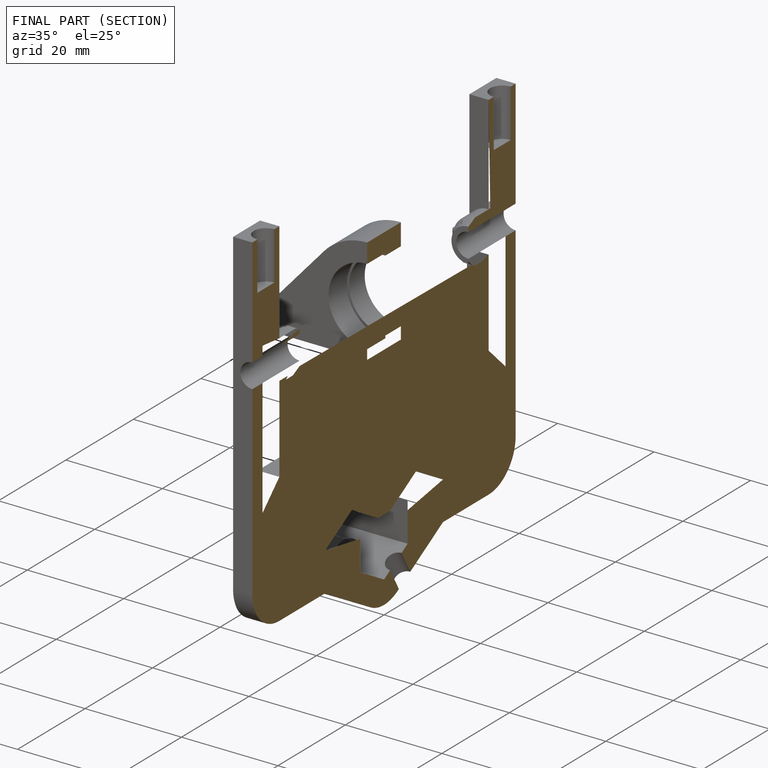
[diagram: finished part — half-section view (interior)]
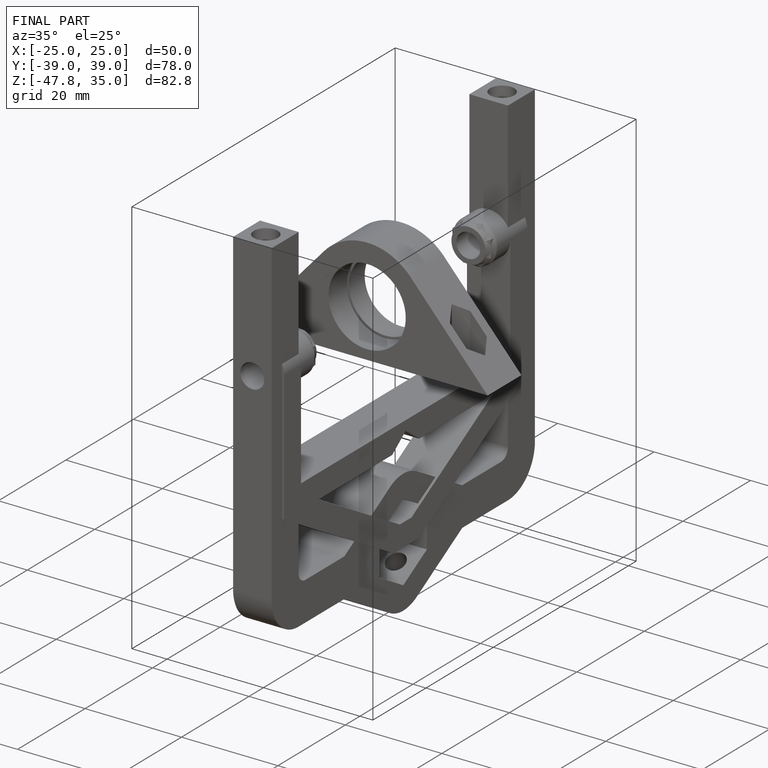
[diagram: finished part — iso view with bounding-box wireframe]
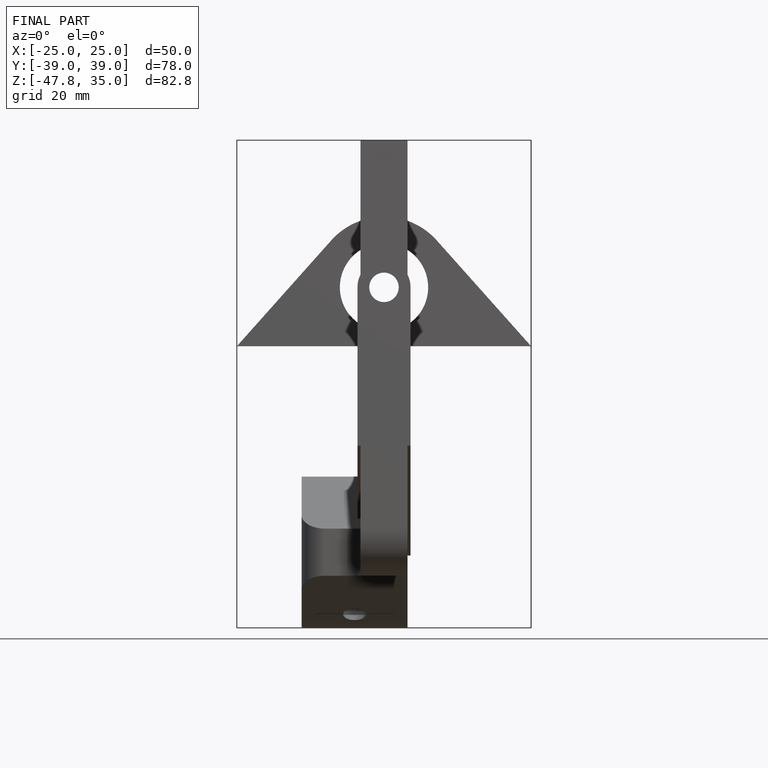
[diagram: finished part — front view with bounding-box wireframe]
